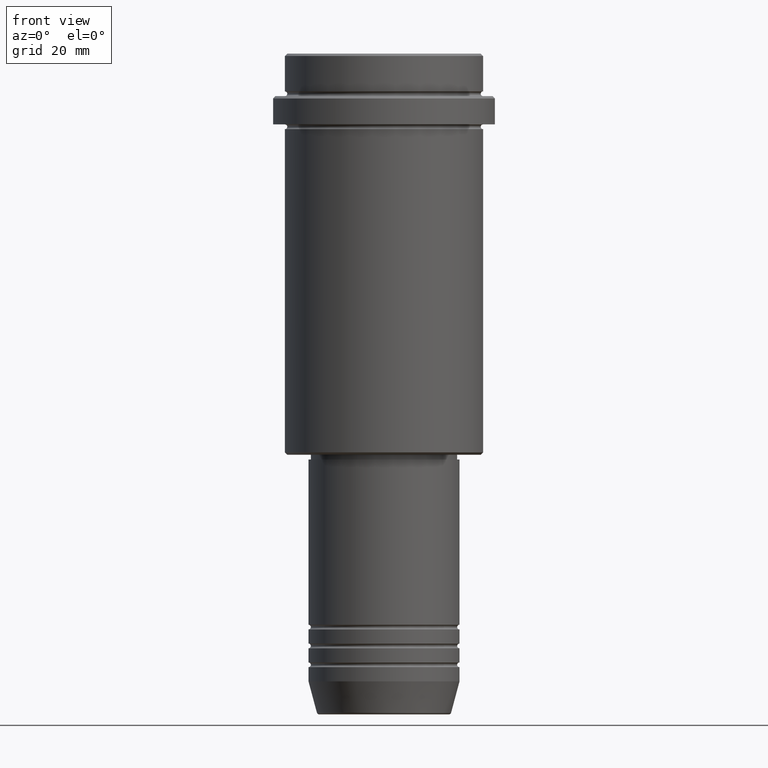
[diagram: clean part render]
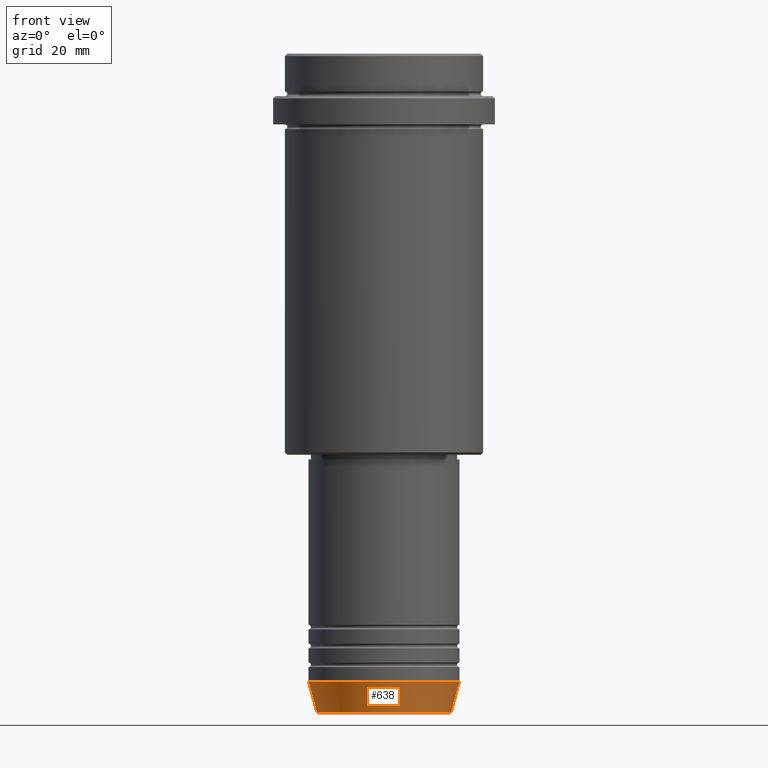
[diagram: same view with one face highlighted and labeled with its STEP entity id]
A machine part, front view. The second image highlights one B-rep face of the part: STEP entity #638.
In plain terms, the highlighted conical surface has half-angle 15 deg.
Its self-contained STEP definition (entity closure, byte-faithful):
#2 = CARTESIAN_POINT ( 'NONE',  ( -16.00000000000000000, 1.959434878635765131E-15, -133.0000000000000000 ) ) ;
#4 = CARTESIAN_POINT ( 'NONE',  ( -14.22365507213718772, 1.850665122131323337E-15, -139.6294095225512706 ) ) ;
#8 = CARTESIAN_POINT ( 'NONE',  ( -16.00000000000000000, 1.959434878635765131E-15, -133.0000000000000000 ) ) ;
#32 = DIRECTION ( 'NONE',  ( -0.000000000000000000, -0.000000000000000000, 1.000000000000000000 ) ) ;
#95 = DIRECTION ( 'NONE',  ( -0.000000000000000000, -0.000000000000000000, 1.000000000000000000 ) ) ;
#103 = DIRECTION ( 'NONE',  ( -0.2588190451025213501, 3.169619151431772337E-17, 0.9659258262890680902 ) ) ;
#119 = LINE ( 'NONE', #8, #361 ) ;
#180 = CIRCLE ( 'NONE', #1219, 14.22365507213718772 ) ;
#201 = ORIENTED_EDGE ( 'NONE', *, *, #1150, .F. ) ;
#236 = EDGE_CURVE ( 'NONE', #1082, #286, #180, .T. ) ;
#247 = VERTEX_POINT ( 'NONE', #2 ) ;
#250 = ORIENTED_EDGE ( 'NONE', *, *, #936, .F. ) ;
#286 = VERTEX_POINT ( 'NONE', #978 ) ;
#342 = VERTEX_POINT ( 'NONE', #911 ) ;
#361 = VECTOR ( 'NONE', #103, 1000.000000000000000 ) ;
#426 = AXIS2_PLACEMENT_3D ( 'NONE', #1006, #32, #565 ) ;
#565 = DIRECTION ( 'NONE',  ( 1.000000000000000000, 0.000000000000000000, 0.000000000000000000 ) ) ;
#573 = FACE_OUTER_BOUND ( 'NONE', #1330, .T. ) ;
#612 = CARTESIAN_POINT ( 'NONE',  ( 0.000000000000000000, 0.000000000000000000, -133.0000000000000000 ) ) ;
#638 = ADVANCED_FACE ( 'NONE', ( #573 ), #1042, .T. ) ;
#672 = AXIS2_PLACEMENT_3D ( 'NONE', #612, #1291, #1070 ) ;
#704 = EDGE_CURVE ( 'NONE', #286, #342, #1212, .T. ) ;
#763 = ORIENTED_EDGE ( 'NONE', *, *, #704, .T. ) ;
#911 = CARTESIAN_POINT ( 'NONE',  ( 16.00000000000000000, 0.000000000000000000, -133.0000000000000000 ) ) ;
#936 = EDGE_CURVE ( 'NONE', #247, #342, #951, .T. ) ;
#951 = CIRCLE ( 'NONE', #672, 16.00000000000000000 ) ;
#978 = CARTESIAN_POINT ( 'NONE',  ( 14.22365507213718772, 0.000000000000000000, -139.6294095225512706 ) ) ;
#1006 = CARTESIAN_POINT ( 'NONE',  ( 0.000000000000000000, 0.000000000000000000, -133.0000000000000000 ) ) ;
#1042 = CONICAL_SURFACE ( 'NONE', #426, 16.00000000000000000, 0.2617993877991500740 ) ;
#1070 = DIRECTION ( 'NONE',  ( 1.000000000000000000, 0.000000000000000000, 0.000000000000000000 ) ) ;
#1079 = CARTESIAN_POINT ( 'NONE',  ( 0.000000000000000000, 0.000000000000000000, -139.6294095225512706 ) ) ;
#1082 = VERTEX_POINT ( 'NONE', #4 ) ;
#1150 = EDGE_CURVE ( 'NONE', #1082, #247, #119, .T. ) ;
#1212 = LINE ( 'NONE', #1315, #1222 ) ;
#1217 = ORIENTED_EDGE ( 'NONE', *, *, #236, .T. ) ;
#1219 = AXIS2_PLACEMENT_3D ( 'NONE', #1079, #95, #1400 ) ;
#1222 = VECTOR ( 'NONE', #1304, 1000.000000000000000 ) ;
#1291 = DIRECTION ( 'NONE',  ( -0.000000000000000000, -0.000000000000000000, 1.000000000000000000 ) ) ;
#1304 = DIRECTION ( 'NONE',  ( 0.2588190451025213501, 0.000000000000000000, 0.9659258262890680902 ) ) ;
#1315 = CARTESIAN_POINT ( 'NONE',  ( 16.00000000000000000, 0.000000000000000000, -133.0000000000000000 ) ) ;
#1330 = EDGE_LOOP ( 'NONE', ( #201, #1217, #763, #250 ) ) ;
#1400 = DIRECTION ( 'NONE',  ( 1.000000000000000000, 0.000000000000000000, 0.000000000000000000 ) ) ;